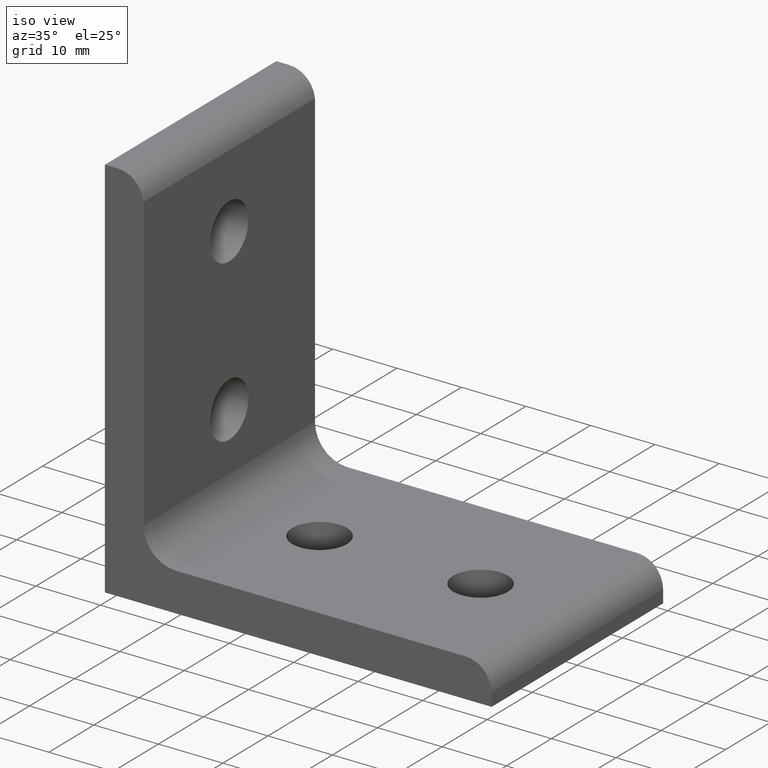
[diagram: clean part render]
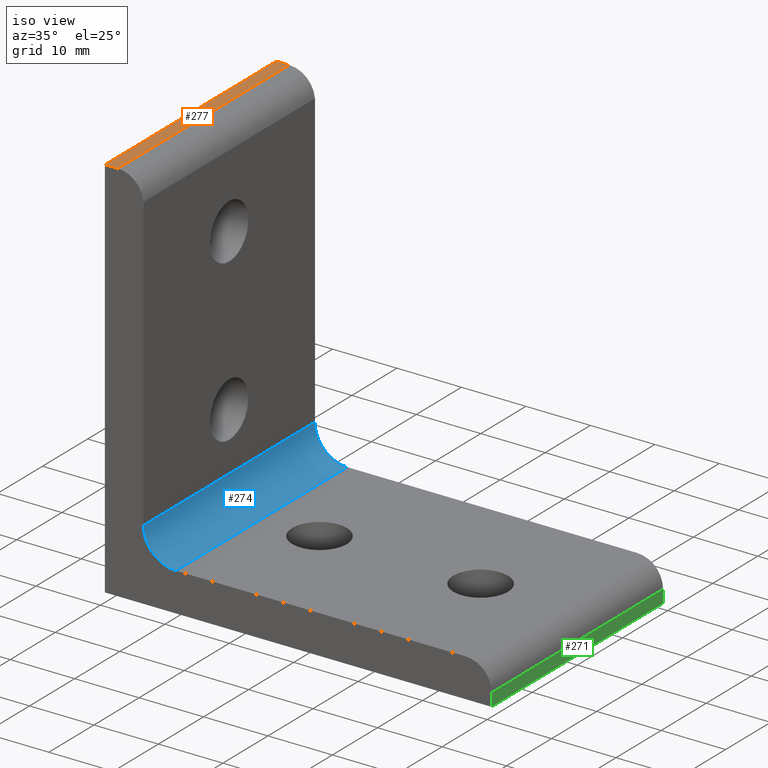
[diagram: same view with three faces highlighted in distinct colors, each labeled with its STEP entity id]
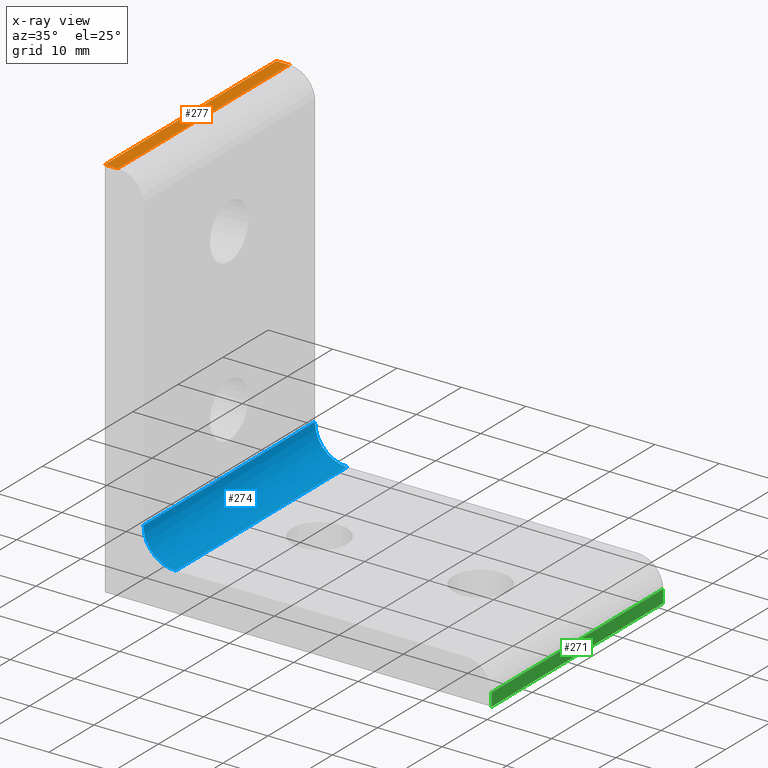
[diagram: x-ray of the same camera — body ghosted, the three highlighted faces saturated]
A machine part, iso view with three faces highlighted in distinct colors.
The next image is the same camera in x-ray (body ghosted, the three faces saturated) — at least one of them is partly hidden behind the body in this view.
Their STEP definitions:

[orange] entity #277 — the highlighted planar face has unit normal (0, 0, 1).
#54=FACE_OUTER_BOUND('',#73,.T.);
#73=EDGE_LOOP('',(#221,#222,#223,#224));
#102=LINE('',#444,#123);
#103=LINE('',#448,#124);
#104=LINE('',#450,#125);
#105=LINE('',#451,#126);
#123=VECTOR('',#361,38.);
#124=VECTOR('',#366,1.99999955599196);
#125=VECTOR('',#367,38.);
#126=VECTOR('',#368,1.99999955599196);
#148=VERTEX_POINT('',#441);
#149=VERTEX_POINT('',#443);
#150=VERTEX_POINT('',#447);
#151=VERTEX_POINT('',#449);
#179=EDGE_CURVE('',#148,#149,#102,.T.);
#181=EDGE_CURVE('',#148,#150,#103,.T.);
#182=EDGE_CURVE('',#150,#151,#104,.T.);
#183=EDGE_CURVE('',#149,#151,#105,.T.);
#221=ORIENTED_EDGE('',*,*,#181,.T.);
#222=ORIENTED_EDGE('',*,*,#182,.T.);
#223=ORIENTED_EDGE('',*,*,#183,.F.);
#224=ORIENTED_EDGE('',*,*,#179,.F.);
#266=PLANE('',#304);
#277=ADVANCED_FACE('',(#54),#266,.T.);
#304=AXIS2_PLACEMENT_3D('',#446,#364,#365);
#361=DIRECTION('',(0.,-1.,0.));
#364=DIRECTION('center_axis',(0.,0.,1.));
#365=DIRECTION('ref_axis',(1.,0.,0.));
#366=DIRECTION('',(-1.,0.,0.));
#367=DIRECTION('',(0.,-1.,0.));
#368=DIRECTION('',(-1.,0.,0.));
#441=CARTESIAN_POINT('',(1.99999955599196,19.,59.9999866697599));
#443=CARTESIAN_POINT('',(1.99999955599196,-19.,59.9999866697599));
#444=CARTESIAN_POINT('',(1.99999955599196,19.,59.9999866697599));
#446=CARTESIAN_POINT('Origin',(1.99999955599196,19.,59.9999866697599));
#447=CARTESIAN_POINT('',(0.,19.,59.9999866697599));
#448=CARTESIAN_POINT('',(1.99999955599196,19.,59.9999866697599));
#449=CARTESIAN_POINT('',(0.,-19.,59.9999866697599));
#450=CARTESIAN_POINT('',(0.,19.,59.9999866697599));
#451=CARTESIAN_POINT('',(1.99999955599196,-19.,59.9999866697599));

[blue] entity #274 — the highlighted cylindrical surface (partial cylindrical patch) has radius 5.0038 mm, axis along (0, 1, 0).
#31=CIRCLE('',#296,5.00378472891907);
#32=CIRCLE('',#297,5.00378472891907);
#42=CYLINDRICAL_SURFACE('',#295,5.00378472891907);
#51=FACE_OUTER_BOUND('',#68,.T.);
#68=EDGE_LOOP('',(#207,#208,#209,#210));
#96=LINE('',#418,#117);
#98=LINE('',#428,#119);
#117=VECTOR('',#335,38.);
#119=VECTOR('',#345,38.);
#138=VERTEX_POINT('',#415);
#139=VERTEX_POINT('',#417);
#142=VERTEX_POINT('',#425);
#143=VERTEX_POINT('',#427);
#166=EDGE_CURVE('',#138,#139,#96,.T.);
#170=EDGE_CURVE('',#138,#142,#31,.T.);
#171=EDGE_CURVE('',#142,#143,#98,.T.);
#172=EDGE_CURVE('',#139,#143,#32,.T.);
#207=ORIENTED_EDGE('',*,*,#170,.T.);
#208=ORIENTED_EDGE('',*,*,#171,.T.);
#209=ORIENTED_EDGE('',*,*,#172,.F.);
#210=ORIENTED_EDGE('',*,*,#166,.F.);
#274=ADVANCED_FACE('',(#51),#42,.F.);
#295=AXIS2_PLACEMENT_3D('',#424,#341,#342);
#296=AXIS2_PLACEMENT_3D('',#426,#343,#344);
#297=AXIS2_PLACEMENT_3D('',#429,#346,#347);
#335=DIRECTION('',(0.,-1.,0.));
#341=DIRECTION('center_axis',(0.,1.,0.));
#342=DIRECTION('ref_axis',(0.,0.,-1.));
#343=DIRECTION('center_axis',(0.,1.,0.));
#344=DIRECTION('ref_axis',(-1.,0.,0.));
#345=DIRECTION('',(0.,-1.,0.));
#346=DIRECTION('center_axis',(0.,1.,0.));
#347=DIRECTION('ref_axis',(-1.,0.,0.));
#415=CARTESIAN_POINT('',(10.9866859311292,19.,5.99998095754563));
#417=CARTESIAN_POINT('',(10.9866859311292,-19.,5.99998095754563));
#418=CARTESIAN_POINT('',(10.9866859311292,19.,5.99998095754563));
#424=CARTESIAN_POINT('Origin',(10.9866859311292,19.,11.0037656864647));
#425=CARTESIAN_POINT('',(5.98290120221009,19.,11.0037656864647));
#426=CARTESIAN_POINT('Origin',(10.9866859311292,19.,11.0037656864647));
#427=CARTESIAN_POINT('',(5.98290120221009,-19.,11.0037656864647));
#428=CARTESIAN_POINT('',(5.98290120221009,19.,11.0037656864647));
#429=CARTESIAN_POINT('Origin',(10.9866859311292,-19.,11.0037656864647));

[green] entity #271 — the highlighted planar face has unit normal (1, 0, 0).
#48=FACE_OUTER_BOUND('',#63,.T.);
#63=EDGE_LOOP('',(#193,#194,#195,#196));
#90=LINE('',#402,#111);
#91=LINE('',#404,#112);
#92=LINE('',#406,#113);
#93=LINE('',#407,#114);
#111=VECTOR('',#321,1.99998341995524);
#112=VECTOR('',#322,38.);
#113=VECTOR('',#323,1.99998341995524);
#114=VECTOR('',#324,38.);
#132=VERTEX_POINT('',#400);
#133=VERTEX_POINT('',#401);
#134=VERTEX_POINT('',#403);
#135=VERTEX_POINT('',#405);
#158=EDGE_CURVE('',#132,#133,#90,.T.);
#159=EDGE_CURVE('',#133,#134,#91,.T.);
#160=EDGE_CURVE('',#135,#134,#92,.T.);
#161=EDGE_CURVE('',#132,#135,#93,.T.);
#193=ORIENTED_EDGE('',*,*,#158,.T.);
#194=ORIENTED_EDGE('',*,*,#159,.T.);
#195=ORIENTED_EDGE('',*,*,#160,.F.);
#196=ORIENTED_EDGE('',*,*,#161,.F.);
#263=PLANE('',#288);
#271=ADVANCED_FACE('',(#48),#263,.T.);
#288=AXIS2_PLACEMENT_3D('',#399,#319,#320);
#319=DIRECTION('center_axis',(1.,0.,0.));
#320=DIRECTION('ref_axis',(0.,0.,-1.));
#321=DIRECTION('',(0.,0.,1.));
#322=DIRECTION('',(0.,-1.,0.));
#323=DIRECTION('',(0.,0.,1.));
#324=DIRECTION('',(0.,-1.,0.));
#399=CARTESIAN_POINT('Origin',(59.9999866797652,19.,-1.163414E-15));
#400=CARTESIAN_POINT('',(59.9999866797652,19.,-1.163414E-15));
#401=CARTESIAN_POINT('',(59.9999866797361,19.,1.99998341995524));
#402=CARTESIAN_POINT('',(59.9999866797652,19.,-1.163414E-15));
#403=CARTESIAN_POINT('',(59.9999866797361,-19.,1.99998341995524));
#404=CARTESIAN_POINT('',(59.9999866797361,19.,1.99998341995524));
#405=CARTESIAN_POINT('',(59.9999866797652,-19.,-1.163414E-15));
#406=CARTESIAN_POINT('',(59.9999866797652,-19.,-1.163414E-15));
#407=CARTESIAN_POINT('',(59.9999866797652,19.,-1.163414E-15));